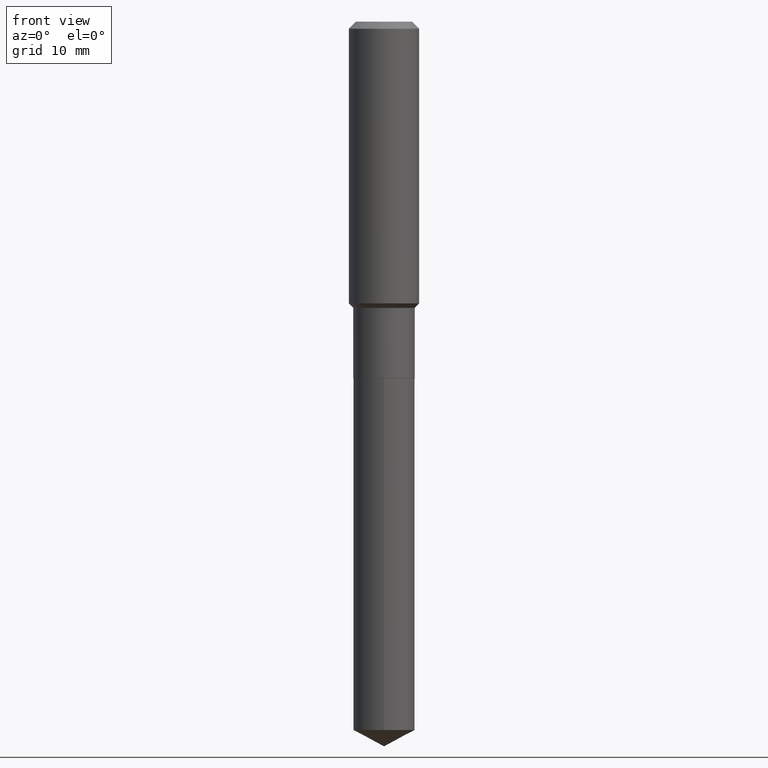
[diagram: clean part render]
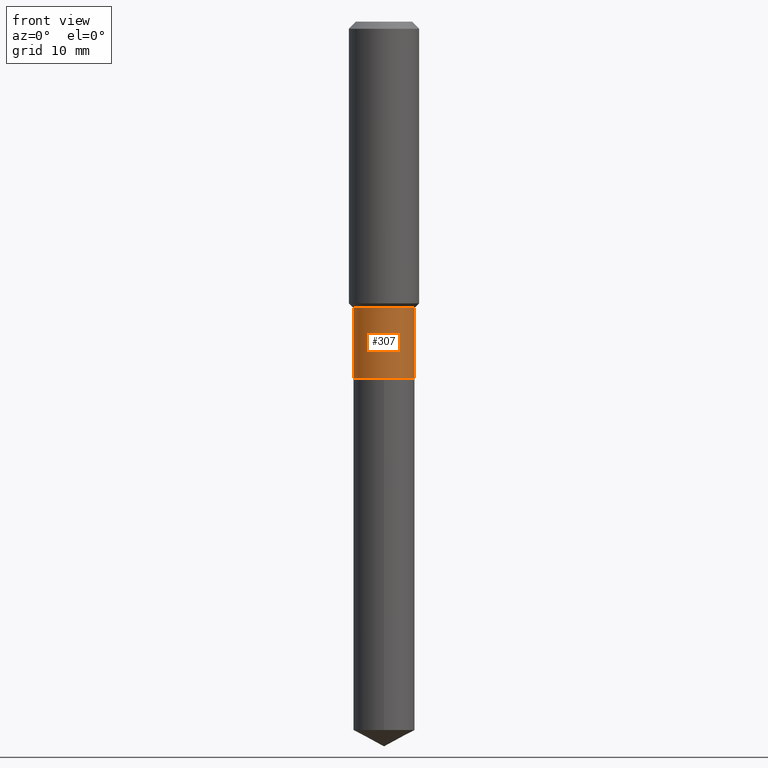
[diagram: same view with one face highlighted and labeled with its STEP entity id]
A machine part, front view. The second image highlights one B-rep face of the part: STEP entity #307.
In plain terms, the highlighted cylindrical surface (edge-blend (fillet) strip) has radius 4.3663 mm, axis along (-0, 0, 1).
Its self-contained STEP definition (entity closure, byte-faithful):
#10 = EDGE_CURVE ( 'NONE', #403, #21, #190, .T. ) ;
#11 = VERTEX_POINT ( 'NONE', #36 ) ;
#21 = VERTEX_POINT ( 'NONE', #428 ) ;
#29 = EDGE_LOOP ( 'NONE', ( #55, #169, #129, #322 ) ) ;
#36 = CARTESIAN_POINT ( 'NONE',  ( 0.1718999999999999417, -6.791629500317682541E-15, -1.601399999999999935 ) ) ;
#51 = AXIS2_PLACEMENT_3D ( 'NONE', #354, #431, #233 ) ;
#55 = ORIENTED_EDGE ( 'NONE', *, *, #408, .F. ) ;
#71 = EDGE_CURVE ( 'NONE', #21, #11, #87, .T. ) ;
#86 = LINE ( 'NONE', #235, #343 ) ;
#87 = LINE ( 'NONE', #236, #326 ) ;
#109 = CARTESIAN_POINT ( 'NONE',  ( -0.1718999999999999417, -5.059228243606380469E-15, -1.601399999999999935 ) ) ;
#118 = CYLINDRICAL_SURFACE ( 'NONE', #483, 0.1718999999999999417 ) ;
#129 = ORIENTED_EDGE ( 'NONE', *, *, #71, .T. ) ;
#154 = DIRECTION ( 'NONE',  ( 1.000000000000000000, -6.982962677686266711E-15, 4.876176775795936353E-29 ) ) ;
#163 = CIRCLE ( 'NONE', #239, 0.1718999999999999417 ) ;
#169 = ORIENTED_EDGE ( 'NONE', *, *, #10, .T. ) ;
#180 = EDGE_CURVE ( 'NONE', #260, #11, #163, .T. ) ;
#190 = CIRCLE ( 'NONE', #51, 0.1718999999999999695 ) ;
#197 = DIRECTION ( 'NONE',  ( -2.445468806185136877E-29, 3.491481338843145188E-15, 1.000000000000000000 ) ) ;
#233 = DIRECTION ( 'NONE',  ( 1.000000000000000000, -6.982962677686268288E-15, 0.000000000000000000 ) ) ;
#235 = CARTESIAN_POINT ( 'NONE',  ( -0.1718999999999999417, 1.221422962771611806E-15, -8.455649420148180377E-30 ) ) ;
#236 = CARTESIAN_POINT ( 'NONE',  ( 0.1718999999999999417, -1.200371284294268847E-15, 8.382147877593211677E-30 ) ) ;
#239 = AXIS2_PLACEMENT_3D ( 'NONE', #376, #443, #294 ) ;
#260 = VERTEX_POINT ( 'NONE', #109 ) ;
#266 = DIRECTION ( 'NONE',  ( -2.445468806185136597E-29, 3.491481338843145583E-15, 1.000000000000000000 ) ) ;
#267 = FACE_OUTER_BOUND ( 'NONE', #29, .T. ) ;
#272 = DIRECTION ( 'NONE',  ( -2.445468806185136877E-29, 3.491481338843145188E-15, 1.000000000000000000 ) ) ;
#294 = DIRECTION ( 'NONE',  ( 1.000000000000000000, -6.982962677686269077E-15, 0.000000000000000000 ) ) ;
#307 = ADVANCED_FACE ( 'NONE', ( #267 ), #118, .T. ) ;
#309 = CARTESIAN_POINT ( 'NONE',  ( 0.000000000000000000, 0.000000000000000000, 0.000000000000000000 ) ) ;
#322 = ORIENTED_EDGE ( 'NONE', *, *, #180, .F. ) ;
#326 = VECTOR ( 'NONE', #197, 39.37007874015748143 ) ;
#343 = VECTOR ( 'NONE', #272, 39.37007874015748143 ) ;
#354 = CARTESIAN_POINT ( 'NONE',  ( 4.881889377787387135E-29, -6.970044196732570461E-15, -1.996299999999999741 ) ) ;
#376 = CARTESIAN_POINT ( 'NONE',  ( 3.916173746224877726E-29, -5.591258216023413300E-15, -1.601399999999999935 ) ) ;
#403 = VERTEX_POINT ( 'NONE', #421 ) ;
#408 = EDGE_CURVE ( 'NONE', #403, #260, #86, .T. ) ;
#421 = CARTESIAN_POINT ( 'NONE',  ( -0.1718999999999999695, -5.059228243606378892E-15, -1.996299999999999741 ) ) ;
#428 = CARTESIAN_POINT ( 'NONE',  ( 0.1718999999999999695, -8.170415481026838913E-15, -1.996299999999999741 ) ) ;
#431 = DIRECTION ( 'NONE',  ( -2.445468806185136597E-29, 3.491481338843145583E-15, 1.000000000000000000 ) ) ;
#443 = DIRECTION ( 'NONE',  ( -2.445468806185136597E-29, 3.491481338843145583E-15, 1.000000000000000000 ) ) ;
#483 = AXIS2_PLACEMENT_3D ( 'NONE', #309, #266, #154 ) ;